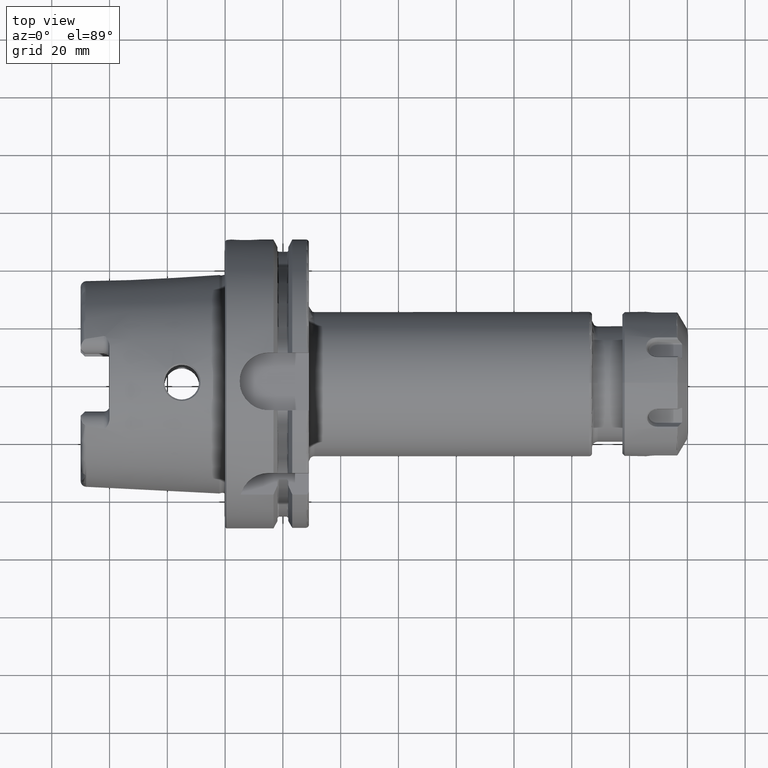
[diagram: clean part render]
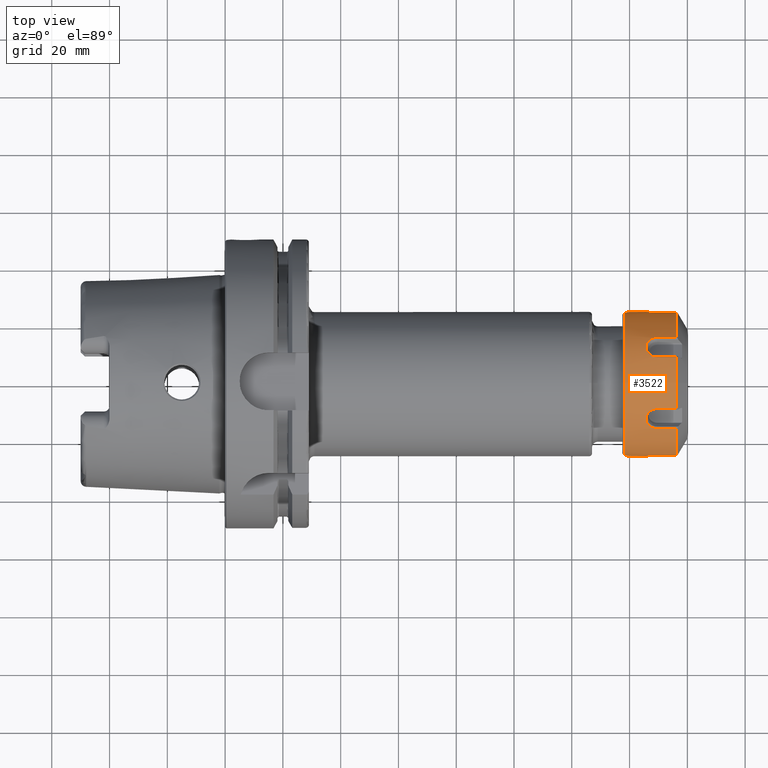
[diagram: same view with one face highlighted and labeled with its STEP entity id]
A machine part, top view. The second image highlights one B-rep face of the part: STEP entity #3522.
In plain terms, the highlighted cylindrical surface (bore or boss wall) has radius 25 mm, axis along (1, 0, 0).
Its self-contained STEP definition (entity closure, byte-faithful):
#231=B_SPLINE_CURVE_WITH_KNOTS('',3,(#7008,#7009,#7010,#7011,#7012,#7013,
#7014,#7015,#7016,#7017,#7018,#7019,#7020,#7021,#7022,#7023,#7024,#7025,
#7026,#7027,#7028,#7029,#7030,#7031,#7032,#7033),.UNSPECIFIED.,.F.,.F.,
(4,2,2,2,2,2,2,2,2,2,2,2,4),(9.9999995238631E-7,0.0879052907423527,0.176637565379742,
0.235903650970046,0.390130017504631,0.466901397524831,0.619877047493406,
0.772895245938568,0.849748430711965,1.00354549994743,1.06255814926592,1.15065991936563,
1.23696691744975),.UNSPECIFIED.);
#232=B_SPLINE_CURVE_WITH_KNOTS('',3,(#7041,#7042,#7043,#7044,#7045,#7046,
#7047,#7048,#7049,#7050,#7051,#7052,#7053,#7054,#7055,#7056,#7057,#7058,
#7059,#7060,#7061,#7062,#7063,#7064,#7065,#7066),.UNSPECIFIED.,.F.,.F.,
(4,2,2,2,2,2,2,2,2,2,2,2,4),(1.00000009417567E-6,0.0878138369275421,0.176555140054308,
0.235820765056358,0.389974853515028,0.466697048924996,0.619573178814066,
0.772490695512649,0.849291747057756,1.00296705428542,1.06195384990398,1.14997782321717,
1.23616298191316),.UNSPECIFIED.);
#233=B_SPLINE_CURVE_WITH_KNOTS('',3,(#7074,#7075,#7076,#7077,#7078,#7079,
#7080,#7081,#7082,#7083,#7084,#7085,#7086,#7087,#7088,#7089,#7090,#7091,
#7092,#7093,#7094,#7095,#7096,#7097,#7098,#7099),.UNSPECIFIED.,.F.,.F.,
(4,2,2,2,2,2,2,2,2,2,2,2,4),(9.99999951775687E-7,0.0878941569707288,0.176624334532777,
0.235888687428025,0.390110943020404,0.466875792134982,0.61983845664042,
0.772844514946801,0.849692191333624,1.003474767993,1.06248200532863,1.15057983966351,
1.23688736597224),.UNSPECIFIED.);
#234=B_SPLINE_CURVE_WITH_KNOTS('',3,(#7107,#7108,#7109,#7110,#7111,#7112,
#7113,#7114,#7115,#7116,#7117,#7118,#7119,#7120,#7121,#7122,#7123,#7124,
#7125,#7126,#7127,#7128,#7129,#7130,#7131,#7132),.UNSPECIFIED.,.F.,.F.,
(4,2,2,2,2,2,2,2,2,2,2,2,4),(9.99999952469577E-7,0.087905230227901,0.176637529735317,
0.23590362205516,0.390129919451193,0.466901259045231,0.619876828803479,
0.772894942890079,0.849748081258391,1.00354500406063,1.06255762506737,1.1506592888794,
1.2369661055211),.UNSPECIFIED.);
#235=B_SPLINE_CURVE_WITH_KNOTS('',3,(#7137,#7138,#7139,#7140,#7141,#7142,
#7143,#7144,#7145,#7146,#7147,#7148,#7149,#7150,#7151,#7152,#7153,#7154,
#7155,#7156,#7157,#7158,#7159,#7160,#7161,#7162),.UNSPECIFIED.,.F.,.F.,
(4,2,2,2,2,2,2,2,2,2,2,2,4),(1.00000009425893E-6,0.0878137755469969,0.176555099847401,
0.235820733272125,0.389974766086827,0.466696934474965,0.619573008826759,
0.772490466286766,0.849291481801536,1.00296667617739,1.06195345833607,1.14997734942518,
1.23616236019383),.UNSPECIFIED.);
#236=B_SPLINE_CURVE_WITH_KNOTS('',3,(#7170,#7171,#7172,#7173,#7174,#7175,
#7176,#7177,#7178,#7179,#7180,#7181,#7182,#7183,#7184,#7185,#7186,#7187,
#7188,#7189,#7190,#7191,#7192,#7193,#7194,#7195),.UNSPECIFIED.,.F.,.F.,
(4,2,2,2,2,2,2,2,2,2,2,2,4),(9.99999951900588E-7,0.0878942147625397,0.176624366940175,
0.23588871226361,0.390111034009128,0.466875921238402,0.619838663234569,
0.772844800309569,0.849692521299405,1.00347524440874,1.06248250865998,1.15058044952841,
1.2368881619258),.UNSPECIFIED.);
#558=FACE_OUTER_BOUND('',#781,.T.);
#781=EDGE_LOOP('',(#3024,#3025,#3026,#3027,#3028,#3029,#3030,#3031,#3032,
#3033,#3034,#3035,#3036,#3037,#3038,#3039,#3040,#3041,#3042,#3043,#3044,
#3045,#3046,#3047,#3048,#3049,#3050,#3051));
#962=LINE('',#7001,#1150);
#963=LINE('',#7006,#1151);
#964=LINE('',#7035,#1152);
#965=LINE('',#7039,#1153);
#966=LINE('',#7068,#1154);
#967=LINE('',#7072,#1155);
#968=LINE('',#7101,#1156);
#969=LINE('',#7105,#1157);
#970=LINE('',#7133,#1158);
#971=LINE('',#7135,#1159);
#972=LINE('',#7164,#1160);
#973=LINE('',#7168,#1161);
#974=LINE('',#7196,#1162);
#1150=VECTOR('',#4804,25.);
#1151=VECTOR('',#4809,6.64722344657);
#1152=VECTOR('',#4810,6.647223564864);
#1153=VECTOR('',#4813,6.647222883786);
#1154=VECTOR('',#4814,6.647222910959);
#1155=VECTOR('',#4817,6.647223440681);
#1156=VECTOR('',#4818,6.647223598116);
#1157=VECTOR('',#4821,6.647223446385);
#1158=VECTOR('',#4822,6.647223564616);
#1159=VECTOR('',#4823,6.64722288378);
#1160=VECTOR('',#4824,6.647222910886);
#1161=VECTOR('',#4827,6.647223440838);
#1162=VECTOR('',#4828,6.647223598416);
#1387=CIRCLE('',#3971,25.);
#1388=CIRCLE('',#3973,25.);
#1389=CIRCLE('',#3974,25.);
#1390=CIRCLE('',#3975,25.);
#1391=CIRCLE('',#3976,25.);
#1392=CIRCLE('',#3977,25.);
#1393=CIRCLE('',#3978,25.);
#1394=CIRCLE('',#3979,25.);
#1693=VERTEX_POINT('',#6977);
#1694=VERTEX_POINT('',#6978);
#1695=VERTEX_POINT('',#6997);
#1696=VERTEX_POINT('',#6998);
#1697=VERTEX_POINT('',#7000);
#1698=VERTEX_POINT('',#7003);
#1699=VERTEX_POINT('',#7005);
#1700=VERTEX_POINT('',#7007);
#1701=VERTEX_POINT('',#7034);
#1702=VERTEX_POINT('',#7036);
#1703=VERTEX_POINT('',#7038);
#1704=VERTEX_POINT('',#7040);
#1705=VERTEX_POINT('',#7067);
#1706=VERTEX_POINT('',#7069);
#1707=VERTEX_POINT('',#7071);
#1708=VERTEX_POINT('',#7073);
#1709=VERTEX_POINT('',#7100);
#1710=VERTEX_POINT('',#7102);
#1711=VERTEX_POINT('',#7104);
#1712=VERTEX_POINT('',#7106);
#1713=VERTEX_POINT('',#7134);
#1714=VERTEX_POINT('',#7136);
#1715=VERTEX_POINT('',#7163);
#1716=VERTEX_POINT('',#7165);
#1717=VERTEX_POINT('',#7167);
#1718=VERTEX_POINT('',#7169);
#2150=EDGE_CURVE('',#1693,#1694,#1387,.T.);
#2153=EDGE_CURVE('',#1695,#1696,#1388,.T.);
#2154=EDGE_CURVE('',#1696,#1697,#962,.T.);
#2155=EDGE_CURVE('',#1697,#1697,#1389,.T.);
#2156=EDGE_CURVE('',#1696,#1698,#1390,.T.);
#2157=EDGE_CURVE('',#1698,#1699,#963,.T.);
#2158=EDGE_CURVE('',#1699,#1700,#231,.T.);
#2159=EDGE_CURVE('',#1700,#1701,#964,.T.);
#2160=EDGE_CURVE('',#1701,#1702,#1391,.T.);
#2161=EDGE_CURVE('',#1702,#1703,#965,.T.);
#2162=EDGE_CURVE('',#1703,#1704,#232,.T.);
#2163=EDGE_CURVE('',#1704,#1705,#966,.T.);
#2164=EDGE_CURVE('',#1705,#1706,#1392,.T.);
#2165=EDGE_CURVE('',#1706,#1707,#967,.T.);
#2166=EDGE_CURVE('',#1707,#1708,#233,.T.);
#2167=EDGE_CURVE('',#1708,#1709,#968,.T.);
#2168=EDGE_CURVE('',#1709,#1710,#1393,.T.);
#2169=EDGE_CURVE('',#1710,#1711,#969,.T.);
#2170=EDGE_CURVE('',#1711,#1712,#234,.T.);
#2171=EDGE_CURVE('',#1712,#1693,#970,.T.);
#2172=EDGE_CURVE('',#1694,#1713,#971,.T.);
#2173=EDGE_CURVE('',#1713,#1714,#235,.T.);
#2174=EDGE_CURVE('',#1714,#1715,#972,.T.);
#2175=EDGE_CURVE('',#1715,#1716,#1394,.T.);
#2176=EDGE_CURVE('',#1716,#1717,#973,.T.);
#2177=EDGE_CURVE('',#1717,#1718,#236,.T.);
#2178=EDGE_CURVE('',#1718,#1695,#974,.T.);
#3024=ORIENTED_EDGE('',*,*,#2153,.T.);
#3025=ORIENTED_EDGE('',*,*,#2154,.T.);
#3026=ORIENTED_EDGE('',*,*,#2155,.F.);
#3027=ORIENTED_EDGE('',*,*,#2154,.F.);
#3028=ORIENTED_EDGE('',*,*,#2156,.T.);
#3029=ORIENTED_EDGE('',*,*,#2157,.T.);
#3030=ORIENTED_EDGE('',*,*,#2158,.T.);
#3031=ORIENTED_EDGE('',*,*,#2159,.T.);
#3032=ORIENTED_EDGE('',*,*,#2160,.T.);
#3033=ORIENTED_EDGE('',*,*,#2161,.T.);
#3034=ORIENTED_EDGE('',*,*,#2162,.T.);
#3035=ORIENTED_EDGE('',*,*,#2163,.T.);
#3036=ORIENTED_EDGE('',*,*,#2164,.T.);
#3037=ORIENTED_EDGE('',*,*,#2165,.T.);
#3038=ORIENTED_EDGE('',*,*,#2166,.T.);
#3039=ORIENTED_EDGE('',*,*,#2167,.T.);
#3040=ORIENTED_EDGE('',*,*,#2168,.T.);
#3041=ORIENTED_EDGE('',*,*,#2169,.T.);
#3042=ORIENTED_EDGE('',*,*,#2170,.T.);
#3043=ORIENTED_EDGE('',*,*,#2171,.T.);
#3044=ORIENTED_EDGE('',*,*,#2150,.T.);
#3045=ORIENTED_EDGE('',*,*,#2172,.T.);
#3046=ORIENTED_EDGE('',*,*,#2173,.T.);
#3047=ORIENTED_EDGE('',*,*,#2174,.T.);
#3048=ORIENTED_EDGE('',*,*,#2175,.T.);
#3049=ORIENTED_EDGE('',*,*,#2176,.T.);
#3050=ORIENTED_EDGE('',*,*,#2177,.T.);
#3051=ORIENTED_EDGE('',*,*,#2178,.T.);
#3372=CYLINDRICAL_SURFACE('',#3972,25.);
#3522=ADVANCED_FACE('',(#558),#3372,.T.);
#3971=AXIS2_PLACEMENT_3D('',#6979,#4798,#4799);
#3972=AXIS2_PLACEMENT_3D('',#6996,#4800,#4801);
#3973=AXIS2_PLACEMENT_3D('',#6999,#4802,#4803);
#3974=AXIS2_PLACEMENT_3D('',#7002,#4805,#4806);
#3975=AXIS2_PLACEMENT_3D('',#7004,#4807,#4808);
#3976=AXIS2_PLACEMENT_3D('',#7037,#4811,#4812);
#3977=AXIS2_PLACEMENT_3D('',#7070,#4815,#4816);
#3978=AXIS2_PLACEMENT_3D('',#7103,#4819,#4820);
#3979=AXIS2_PLACEMENT_3D('',#7166,#4825,#4826);
#4798=DIRECTION('center_axis',(-1.,0.,0.));
#4799=DIRECTION('ref_axis',(0.,-0.631277286733596,-0.775557210819595));
#4800=DIRECTION('center_axis',(1.,0.,0.));
#4801=DIRECTION('ref_axis',(0.,0.,-1.));
#4802=DIRECTION('center_axis',(-1.,0.,0.));
#4803=DIRECTION('ref_axis',(0.,0.,1.));
#4804=DIRECTION('',(-1.,0.,0.));
#4805=DIRECTION('center_axis',(-1.,0.,0.));
#4806=DIRECTION('ref_axis',(0.,0.,-1.));
#4807=DIRECTION('center_axis',(-1.,0.,0.));
#4808=DIRECTION('ref_axis',(0.,0.,1.));
#4809=DIRECTION('',(-1.,-1.159560992356E-10,2.11509500553E-11));
#4810=DIRECTION('',(1.,-1.276633033488E-10,1.526081585287E-10));
#4811=DIRECTION('center_axis',(-1.,0.,0.));
#4812=DIRECTION('ref_axis',(0.,0.631277286733596,0.775557210819595));
#4813=DIRECTION('',(-1.,7.686741409635E-11,-2.238710456628E-10));
#4814=DIRECTION('',(1.,-7.310370522877E-11,-1.968159154923E-10));
#4815=DIRECTION('center_axis',(-1.,0.,0.));
#4816=DIRECTION('ref_axis',(0.,0.987290890024773,-0.158923561733596));
#4817=DIRECTION('',(-1.,7.459753134974E-11,8.763849718101E-11));
#4818=DIRECTION('',(1.,2.171785744726E-10,3.807106787261E-11));
#4819=DIRECTION('center_axis',(-1.,0.,0.));
#4820=DIRECTION('ref_axis',(0.,0.,-1.));
#4821=DIRECTION('',(-1.,1.158545507345E-10,-2.113331268409E-11));
#4822=DIRECTION('',(1.,1.275572118917E-10,-1.524830935366E-10));
#4823=DIRECTION('',(-1.,-7.687115535743E-11,2.238859438988E-10));
#4824=DIRECTION('',(1.,7.311706687595E-11,1.968496536516E-10));
#4825=DIRECTION('center_axis',(-1.,0.,0.));
#4826=DIRECTION('ref_axis',(0.,-0.987290890024773,0.158923561733596));
#4827=DIRECTION('',(-1.,-7.46531157925E-11,-8.770583987134E-11));
#4828=DIRECTION('',(1.,-2.173739217127E-10,-3.81079460111E-11));
#6977=CARTESIAN_POINT('',(7.497223250267,-15.78193216834,-19.38893027049));
#6978=CARTESIAN_POINT('',(7.497223250267,-24.68227225062,-3.97308904334));
#6979=CARTESIAN_POINT('Origin',(7.497223250267,0.,0.));
#6996=CARTESIAN_POINT('Origin',(-11.25,0.,0.));
#6997=CARTESIAN_POINT('',(7.497223250268,-8.90034008228,23.36201931383));
#6998=CARTESIAN_POINT('',(7.497223250268,-3.06161699786838E-15,25.));
#6999=CARTESIAN_POINT('Origin',(7.497223250267,0.,0.));
#7000=CARTESIAN_POINT('',(-10.45,0.,25.));
#7001=CARTESIAN_POINT('',(-11.25,-3.06161699786838E-15,25.));
#7002=CARTESIAN_POINT('Origin',(-10.45,0.,0.));
#7003=CARTESIAN_POINT('',(7.497223250267,8.90034008228,23.36201931383));
#7004=CARTESIAN_POINT('Origin',(7.497223250267,0.,0.));
#7005=CARTESIAN_POINT('',(0.849999803697,8.900340081509,23.36201931397));
#7006=CARTESIAN_POINT('',(7.497223250267,8.90034008228,23.36201931383));
#7007=CARTESIAN_POINT('',(0.849999685403604,15.7819321692076,19.3889302699045));
#7008=CARTESIAN_POINT('Ctrl Pts',(0.849999803697697,8.90034008142218,23.3620193141567));
#7009=CARTESIAN_POINT('Ctrl Pts',(0.556988214806367,8.89906306446611,23.3625058254058));
#7010=CARTESIAN_POINT('Ctrl Pts',(0.26261724777573,8.93153175889461,23.3502062834946));
#7011=CARTESIAN_POINT('Ctrl Pts',(-0.31125534425957,9.05580002296358,23.3022952116997));
#7012=CARTESIAN_POINT('Ctrl Pts',(-0.593923216593934,9.14887656054965,23.2661811432127));
#7013=CARTESIAN_POINT('Ctrl Pts',(-1.04056938179903,9.35159728105322,23.1852381718461));
#7014=CARTESIAN_POINT('Ctrl Pts',(-1.21262512280427,9.44524603269654,23.1473582448027));
#7015=CARTESIAN_POINT('Ctrl Pts',(-1.80200428015579,9.82286285775052,22.9912699438263));
#7016=CARTESIAN_POINT('Ctrl Pts',(-2.16698210272784,10.1683862390945,22.8428160957234));
#7017=CARTESIAN_POINT('Ctrl Pts',(-2.59176378383641,10.7606138713495,22.5667088807953));
#7018=CARTESIAN_POINT('Ctrl Pts',(-2.7113454614375,10.9677985476459,22.466974573432));
#7019=CARTESIAN_POINT('Ctrl Pts',(-3.00077380839491,11.6099006832519,22.1458509566706));
#7020=CARTESIAN_POINT('Ctrl Pts',(-3.09929483965554,12.0593085624536,21.9052093593481));
#7021=CARTESIAN_POINT('Ctrl Pts',(-3.09776452633922,12.9511394909136,21.3900269627963));
#7022=CARTESIAN_POINT('Ctrl Pts',(-2.99750238481055,13.3841619924121,21.1208830779851));
#7023=CARTESIAN_POINT('Ctrl Pts',(-2.7062196300935,13.9819654737833,20.7258782143283));
#7024=CARTESIAN_POINT('Ctrl Pts',(-2.58612454090403,14.1712825668685,20.5966440251347));
#7025=CARTESIAN_POINT('Ctrl Pts',(-2.1603467743026,14.7040545894526,20.2232287059954));
#7026=CARTESIAN_POINT('Ctrl Pts',(-1.79444321211271,15.0055297377623,19.9980251897456));
#7027=CARTESIAN_POINT('Ctrl Pts',(-1.20143698934867,15.3289483623426,19.7493326814338));
#7028=CARTESIAN_POINT('Ctrl Pts',(-1.02817443647387,15.4085047352194,19.6871927068306));
#7029=CARTESIAN_POINT('Ctrl Pts',(-0.58042265698393,15.5788973434881,19.5528729525399));
#7030=CARTESIAN_POINT('Ctrl Pts',(-0.297961571865993,15.6556420407217,19.491156670446));
#7031=CARTESIAN_POINT('Ctrl Pts',(0.271006084886863,15.7568242876686,19.4094469361681));
#7032=CARTESIAN_POINT('Ctrl Pts',(0.561474266649588,15.7830370456073,19.3880309378373));
#7033=CARTESIAN_POINT('Ctrl Pts',(0.849999685406121,15.7819321695438,19.3889302695099));
#7034=CARTESIAN_POINT('',(7.497223250267,15.78193216834,19.38893027049));
#7035=CARTESIAN_POINT('',(0.8499996854036,15.78193216919,19.38893026948));
#7036=CARTESIAN_POINT('',(7.497223250267,24.68227225062,3.97308904334));
#7037=CARTESIAN_POINT('Origin',(7.497223250267,0.,0.));
#7038=CARTESIAN_POINT('',(0.850000366480997,24.6822722506958,3.97308904208401));
#7039=CARTESIAN_POINT('',(7.497223250267,24.68227225062,3.97308904334));
#7040=CARTESIAN_POINT('',(0.850000339308605,24.6822722507043,-3.97308904224118));
#7041=CARTESIAN_POINT('Ctrl Pts',(0.850000366478154,24.6822722509095,3.97308904153725));
#7042=CARTESIAN_POINT('Ctrl Pts',(0.557294497669207,24.6820409332602,3.97452607079518));
#7043=CARTESIAN_POINT('Ctrl Pts',(0.263034905527892,24.6876282992806,3.94022707287879));
#7044=CARTESIAN_POINT('Ctrl Pts',(-0.310624708582617,24.7082532173941,3.80876574427735));
#7045=CARTESIAN_POINT('Ctrl Pts',(-0.593535322999683,24.7235180287989,3.71009378532804));
#7046=CARTESIAN_POINT('Ctrl Pts',(-1.04042566812709,24.7547905938333,3.49399302569406));
#7047=CARTESIAN_POINT('Ctrl Pts',(-1.21254919832008,24.7688154773776,3.39391485580949));
#7048=CARTESIAN_POINT('Ctrl Pts',(-1.80198115808831,24.8224544368331,2.98879308315158));
#7049=CARTESIAN_POINT('Ctrl Pts',(-2.16697388575954,24.8666505619373,2.61535441741271));
#7050=CARTESIAN_POINT('Ctrl Pts',(-2.59178778931038,24.92365351717,1.96434603146938));
#7051=CARTESIAN_POINT('Ctrl Pts',(-2.71136848645338,24.9408733026292,1.73504792986882));
#7052=CARTESIAN_POINT('Ctrl Pts',(-3.00078606826906,24.9838218195907,1.01840807604434));
#7053=CARTESIAN_POINT('Ctrl Pts',(-3.0993028419261,25.0001233489757,0.508880440566308));
#7054=CARTESIAN_POINT('Ctrl Pts',(-3.09775592856053,24.9998751658127,-0.521068163364782));
#7055=CARTESIAN_POINT('Ctrl Pts',(-2.99748962718334,24.9833001654694,-1.03064042731025));
#7056=CARTESIAN_POINT('Ctrl Pts',(-2.70618364407116,24.9401147277223,-1.74587069260613));
#7057=CARTESIAN_POINT('Ctrl Pts',(-2.58608154336521,24.9228521354282,-1.97444615940644));
#7058=CARTESIAN_POINT('Ctrl Pts',(-2.16030739196055,24.8658522836497,-2.62250914857131));
#7059=CARTESIAN_POINT('Ctrl Pts',(-1.79436689913953,24.8215515646109,-2.99625080202018));
#7060=CARTESIAN_POINT('Ctrl Pts',(-1.20119063797433,24.7678777919271,-3.40074094799123));
#7061=CARTESIAN_POINT('Ctrl Pts',(-1.02780726547281,24.7538337943837,-3.5007558388354));
#7062=CARTESIAN_POINT('Ctrl Pts',(-0.57993242825243,24.7227037314635,-3.71548078628951));
#7063=CARTESIAN_POINT('Ctrl Pts',(-0.297500400940775,24.7076344943419,-3.8127559573514));
#7064=CARTESIAN_POINT('Ctrl Pts',(0.271335149640932,24.6874811043476,-3.94111771153634));
#7065=CARTESIAN_POINT('Ctrl Pts',(0.561629895983728,24.6820500906169,-3.97446918196907));
#7066=CARTESIAN_POINT('Ctrl Pts',(0.850000339305959,24.6822722508806,-3.97308904171685));
#7067=CARTESIAN_POINT('',(7.497223250268,24.68227225062,-3.97308904334));
#7068=CARTESIAN_POINT('',(0.8500003393086,24.68227225111,-3.973089042032));
#7069=CARTESIAN_POINT('',(7.497223250267,15.78193216834,-19.38893027049));
#7070=CARTESIAN_POINT('Origin',(7.497223250267,0.,0.));
#7071=CARTESIAN_POINT('',(0.8499998095868,15.78193216884,-19.38893026991));
#7072=CARTESIAN_POINT('',(7.497223250267,15.78193216834,-19.38893027049));
#7073=CARTESIAN_POINT('',(0.849999652151898,8.9003400812355,-23.3620193143348));
#7074=CARTESIAN_POINT('Ctrl Pts',(0.849999809587455,15.7819321690314,-19.388930269927));
#7075=CARTESIAN_POINT('Ctrl Pts',(0.557025369885156,15.7829980050107,-19.3880627155599));
#7076=CARTESIAN_POINT('Ctrl Pts',(0.262675665419089,15.7561118985817,-19.4100316628817));
#7077=CARTESIAN_POINT('Ctrl Pts',(-0.311159833993218,15.6525006411461,-19.4936835675112));
#7078=CARTESIAN_POINT('Ctrl Pts',(-0.593840633201923,15.5746913168734,-19.5562296068684));
#7079=CARTESIAN_POINT('Ctrl Pts',(-1.04049668297782,15.403239164722,-19.6913144147476));
#7080=CARTESIAN_POINT('Ctrl Pts',(-1.21255491236126,15.3236123662618,-19.7534748809016));
#7081=CARTESIAN_POINT('Ctrl Pts',(-1.80194679962227,14.9996337962951,-20.0024526328214));
#7082=CARTESIAN_POINT('Ctrl Pts',(-2.1669397631711,14.6983102699169,-20.2274569151732));
#7083=CARTESIAN_POINT('Ctrl Pts',(-2.59173725648885,14.1630745020536,-20.6022930459227));
#7084=CARTESIAN_POINT('Ctrl Pts',(-2.71132198135434,13.9731117990341,-20.7318522175723));
#7085=CARTESIAN_POINT('Ctrl Pts',(-3.00075773487278,13.373969361295,-21.1273624749268));
#7086=CARTESIAN_POINT('Ctrl Pts',(-3.09928659367179,12.9408668890439,-21.3962398800997));
#7087=CARTESIAN_POINT('Ctrl Pts',(-3.097773088459,12.0487946985416,-21.910997549218));
#7088=CARTESIAN_POINT('Ctrl Pts',(-2.99751888676549,11.5991963059453,-22.1514365564187));
#7089=CARTESIAN_POINT('Ctrl Pts',(-2.70624789524791,10.9582063227418,-22.4716510718305));
#7090=CARTESIAN_POINT('Ctrl Pts',(-2.58615666054098,10.7516266524235,-22.5709884782248));
#7091=CARTESIAN_POINT('Ctrl Pts',(-2.16039048328996,10.1618512048838,-22.8456774849883));
#7092=CARTESIAN_POINT('Ctrl Pts',(-1.7945021387392,9.81608449697471,-22.9941606065572));
#7093=CARTESIAN_POINT('Ctrl Pts',(-1.20151793692967,9.4389954616508,-23.1499063580654));
#7094=CARTESIAN_POINT('Ctrl Pts',(-1.028263612225,9.34540144282152,-23.1877348445077));
#7095=CARTESIAN_POINT('Ctrl Pts',(-0.580512521766439,9.14386869688795,-23.2681445561124));
#7096=CARTESIAN_POINT('Ctrl Pts',(-0.298040711577729,9.05203886583955,-23.3037531206632));
#7097=CARTESIAN_POINT('Ctrl Pts',(0.27095582987275,8.93066685711114,-23.3505317486243));
#7098=CARTESIAN_POINT('Ctrl Pts',(0.561450721911353,8.89900623363858,-23.3625274765176));
#7099=CARTESIAN_POINT('Ctrl Pts',(0.849999652154695,8.90034008067135,-23.3620193144427));
#7100=CARTESIAN_POINT('',(7.497223250268,8.90034008228,-23.36201931383));
#7101=CARTESIAN_POINT('',(0.8499996521519,8.900340080836,-23.36201931408));
#7102=CARTESIAN_POINT('',(7.497223250267,-8.90034008228,-23.36201931383));
#7103=CARTESIAN_POINT('Origin',(7.497223250267,0.,0.));
#7104=CARTESIAN_POINT('',(0.849999803882,-8.90034008151,-23.36201931397));
#7105=CARTESIAN_POINT('',(7.497223250267,-8.90034008228,-23.36201931383));
#7106=CARTESIAN_POINT('',(0.849999685651404,-15.7819321692076,-19.3889302699042));
#7107=CARTESIAN_POINT('Ctrl Pts',(0.849999803882699,-8.90034008142275,-23.3620193141565));
#7108=CARTESIAN_POINT('Ctrl Pts',(0.556988417090433,-8.89906298797539,-23.3625058545468));
#7109=CARTESIAN_POINT('Ctrl Pts',(0.262617484675315,-8.93153172454629,-23.350206296481));
#7110=CARTESIAN_POINT('Ctrl Pts',(-0.31125503345258,-9.05579994887462,-23.3022952405232));
#7111=CARTESIAN_POINT('Ctrl Pts',(-0.593923175177775,-9.14887653203464,
-23.2661811549686));
#7112=CARTESIAN_POINT('Ctrl Pts',(-1.04056961939119,-9.35159738833183,-23.1852381287642));
#7113=CARTESIAN_POINT('Ctrl Pts',(-1.21262543478727,-9.44524620134965,-23.1473581763874));
#7114=CARTESIAN_POINT('Ctrl Pts',(-1.80200461178382,-9.82286314551591,-22.9912698215014));
#7115=CARTESIAN_POINT('Ctrl Pts',(-2.16698238730809,-10.1683865399387,-22.842815963009));
#7116=CARTESIAN_POINT('Ctrl Pts',(-2.59176401185802,-10.7606142381187,-22.5667087060453));
#7117=CARTESIAN_POINT('Ctrl Pts',(-2.71134566157983,-10.9677989211266,-22.4669743912144));
#7118=CARTESIAN_POINT('Ctrl Pts',(-3.00077392462613,-11.6099010788075,-22.145850749752));
#7119=CARTESIAN_POINT('Ctrl Pts',(-3.09929490237588,-12.0593089791445,-21.9052091303768));
#7120=CARTESIAN_POINT('Ctrl Pts',(-3.09776446127798,-12.9511399168306,-21.3900267050165));
#7121=CARTESIAN_POINT('Ctrl Pts',(-2.99750226544645,-13.3841623896175,-21.1208828264868));
#7122=CARTESIAN_POINT('Ctrl Pts',(-2.70621940029455,-13.981965864473,-20.7258779506717));
#7123=CARTESIAN_POINT('Ctrl Pts',(-2.58612428050563,-14.1712829492659,-20.5966437619939));
#7124=CARTESIAN_POINT('Ctrl Pts',(-2.16034649156988,-14.7040548326557,-20.2232285257743));
#7125=CARTESIAN_POINT('Ctrl Pts',(-1.79444286027964,-15.0055300282739,-19.9980249715318));
#7126=CARTESIAN_POINT('Ctrl Pts',(-1.20143633648498,-15.3289486747771,-19.7493324392019));
#7127=CARTESIAN_POINT('Ctrl Pts',(-1.02817358892061,-15.4085050936274,-19.6871924264029));
#7128=CARTESIAN_POINT('Ctrl Pts',(-0.580421638460918,-15.578897663397,-19.5528726972162));
#7129=CARTESIAN_POINT('Ctrl Pts',(-0.29796063247918,-15.6556422784557,-19.4911564791808));
#7130=CARTESIAN_POINT('Ctrl Pts',(0.271006732571219,-15.7568243368419,-19.4094468957558));
#7131=CARTESIAN_POINT('Ctrl Pts',(0.561474566374845,-15.783037008791,-19.3880309678045));
#7132=CARTESIAN_POINT('Ctrl Pts',(0.849999685653918,-15.7819321695437,-19.3889302695101));
#7133=CARTESIAN_POINT('',(0.8499996856514,-15.78193216919,-19.38893026948));
#7134=CARTESIAN_POINT('',(0.850000366487002,-24.6822722506944,-3.97308904208506));
#7135=CARTESIAN_POINT('',(7.497223250267,-24.68227225062,-3.97308904334));
#7136=CARTESIAN_POINT('',(0.850000339381803,-24.6822722507043,3.97308904224024));
#7137=CARTESIAN_POINT('Ctrl Pts',(0.850000366484182,-24.6822722509085,-3.97308904154322));
#7138=CARTESIAN_POINT('Ctrl Pts',(0.557294702605885,-24.6820409227316,-3.9745261362024));
#7139=CARTESIAN_POINT('Ctrl Pts',(0.263035170971378,-24.6876282932209,-3.94022710982265));
#7140=CARTESIAN_POINT('Ctrl Pts',(-0.310624355114414,-24.7082532025874,
-3.80876584035195));
#7141=CARTESIAN_POINT('Ctrl Pts',(-0.593535201964998,-24.723518019902,-3.71009384760263));
#7142=CARTESIAN_POINT('Ctrl Pts',(-1.04042581583032,-24.7547906037586,-3.49399295657698));
#7143=CARTESIAN_POINT('Ctrl Pts',(-1.21254943345289,-24.7688154964352,-3.39391471935169));
#7144=CARTESIAN_POINT('Ctrl Pts',(-1.80198145796997,-24.8224544699939,-2.98879281324205));
#7145=CARTESIAN_POINT('Ctrl Pts',(-2.1669741424005,-24.8666505944732,-2.61535411204491));
#7146=CARTESIAN_POINT('Ctrl Pts',(-2.5917879829837,-24.9236535443726,-1.96434568784534));
#7147=CARTESIAN_POINT('Ctrl Pts',(-2.71136865435767,-24.9408733268036,-1.73504758349885));
#7148=CARTESIAN_POINT('Ctrl Pts',(-3.00078616250206,-24.983821834725,-1.01840770992754));
#7149=CARTESIAN_POINT('Ctrl Pts',(-3.099302894733,-25.0001233574372,-0.508880044269458));
#7150=CARTESIAN_POINT('Ctrl Pts',(-3.09775587354793,-24.9998751571517,0.521068585587671));
#7151=CARTESIAN_POINT('Ctrl Pts',(-2.9974895308937,-24.9833001498174,1.03064081999437));
#7152=CARTESIAN_POINT('Ctrl Pts',(-2.70618343974291,-24.9401146985933,1.74587110800806));
#7153=CARTESIAN_POINT('Ctrl Pts',(-2.58608130801534,-24.922852102263,1.97444657782198));
#7154=CARTESIAN_POINT('Ctrl Pts',(-2.16030712376141,-24.8658522502598,2.62250944547686));
#7155=CARTESIAN_POINT('Ctrl Pts',(-1.79436656231922,-24.821551523842,2.99625113685204));
#7156=CARTESIAN_POINT('Ctrl Pts',(-1.20119005677232,-24.7678777440183,3.40074129844431));
#7157=CARTESIAN_POINT('Ctrl Pts',(-1.02780650851633,-24.7538337373964,3.50075624225715));
#7158=CARTESIAN_POINT('Ctrl Pts',(-0.579931522851014,-24.722703677284,3.7154811445682));
#7159=CARTESIAN_POINT('Ctrl Pts',(-0.297499575773513,-24.7076344531182,
3.81275622307523));
#7160=CARTESIAN_POINT('Ctrl Pts',(0.271335721323621,-24.6874810952106,3.94111776663741));
#7161=CARTESIAN_POINT('Ctrl Pts',(0.561630156143936,-24.6820500978386,3.97446913710484));
#7162=CARTESIAN_POINT('Ctrl Pts',(0.850000339379152,-24.6822722508809,3.97308904171478));
#7163=CARTESIAN_POINT('',(7.497223250268,-24.68227225062,3.97308904334));
#7164=CARTESIAN_POINT('',(0.8500003393818,-24.68227225111,3.973089042031));
#7165=CARTESIAN_POINT('',(7.497223250267,-15.78193216834,19.38893027049));
#7166=CARTESIAN_POINT('Origin',(7.497223250267,0.,0.));
#7167=CARTESIAN_POINT('',(0.8499998094295,-15.78193216884,19.38893026991));
#7168=CARTESIAN_POINT('',(7.497223250267,-15.78193216834,19.38893027049));
#7169=CARTESIAN_POINT('',(0.849999651852296,-8.90034008123596,23.3620193143355));
#7170=CARTESIAN_POINT('Ctrl Pts',(0.849999809430154,-15.7819321690312,19.3889302699272));
#7171=CARTESIAN_POINT('Ctrl Pts',(0.557025176716573,-15.7829979439113,19.3880627652928));
#7172=CARTESIAN_POINT('Ctrl Pts',(0.262675441155053,-15.7561118716186,19.4100316849424));
#7173=CARTESIAN_POINT('Ctrl Pts',(-0.311160122982868,-15.6525005835907,
19.4936836136848));
#7174=CARTESIAN_POINT('Ctrl Pts',(-0.593840657899816,-15.5746912975547,
19.5562296216016));
#7175=CARTESIAN_POINT('Ctrl Pts',(-1.04049643030193,-15.4032392626439,19.6913143379221));
#7176=CARTESIAN_POINT('Ctrl Pts',(-1.21255458411809,-15.3236125181208,19.7534747626191));
#7177=CARTESIAN_POINT('Ctrl Pts',(-1.80194644863257,-14.9996340588767,20.0024524351356));
#7178=CARTESIAN_POINT('Ctrl Pts',(-2.16693946096328,-14.6983105528687,20.2274567082299));
#7179=CARTESIAN_POINT('Ctrl Pts',(-2.59173701581922,-14.1630748551654,20.6022928030051));
#7180=CARTESIAN_POINT('Ctrl Pts',(-2.71132176997088,-13.9731121627719,20.7318519722849));
#7181=CARTESIAN_POINT('Ctrl Pts',(-3.00075761371708,-13.3739697563675,21.1273622244387));
#7182=CARTESIAN_POINT('Ctrl Pts',(-3.09928652935458,-12.9408673106324,21.3962396247926));
#7183=CARTESIAN_POINT('Ctrl Pts',(-3.09777315511812,-12.0487951500806,21.9109973007026));
#7184=CARTESIAN_POINT('Ctrl Pts',(-2.99751901139665,-11.5991967419954,22.1514363278298));
#7185=CARTESIAN_POINT('Ctrl Pts',(-2.70624813634038,-10.958206767372,22.4716508551115));
#7186=CARTESIAN_POINT('Ctrl Pts',(-2.58615693282283,-10.7516270905343,22.5709882695758));
#7187=CARTESIAN_POINT('Ctrl Pts',(-2.16039077508482,-10.1618514895994,22.8456773615828));
#7188=CARTESIAN_POINT('Ctrl Pts',(-1.79450249984228,-9.81608484131413,22.994160459751));
#7189=CARTESIAN_POINT('Ctrl Pts',(-1.20151861412989,-9.43899584111834,23.1499062030972));
#7190=CARTESIAN_POINT('Ctrl Pts',(-1.02826449407105,-9.34540188189384,23.1877346674683));
#7191=CARTESIAN_POINT('Ctrl Pts',(-0.580513586069658,-9.14386909545676,
23.2681443998544));
#7192=CARTESIAN_POINT('Ctrl Pts',(-0.29804169637308,-9.05203916401583,23.303753005114));
#7193=CARTESIAN_POINT('Ctrl Pts',(0.27095515048919,-8.93066691968988,23.3505317251203));
#7194=CARTESIAN_POINT('Ctrl Pts',(0.561450406477078,-8.89900618790939,23.3625274939392));
#7195=CARTESIAN_POINT('Ctrl Pts',(0.849999651855094,-8.90034008067152,23.3620193144427));
#7196=CARTESIAN_POINT('',(0.8499996518523,-8.900340080835,23.36201931408));